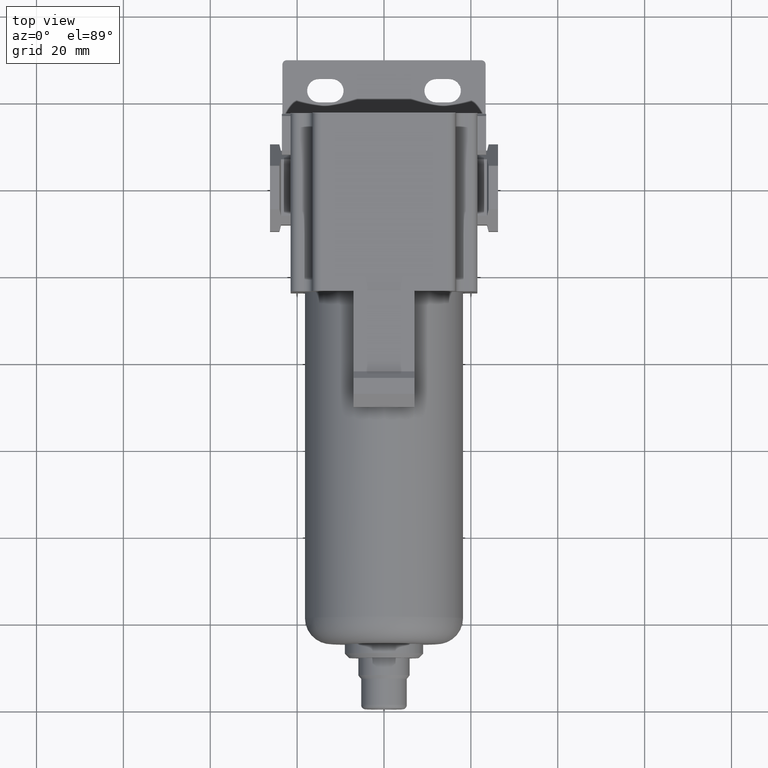
[diagram: clean part render]
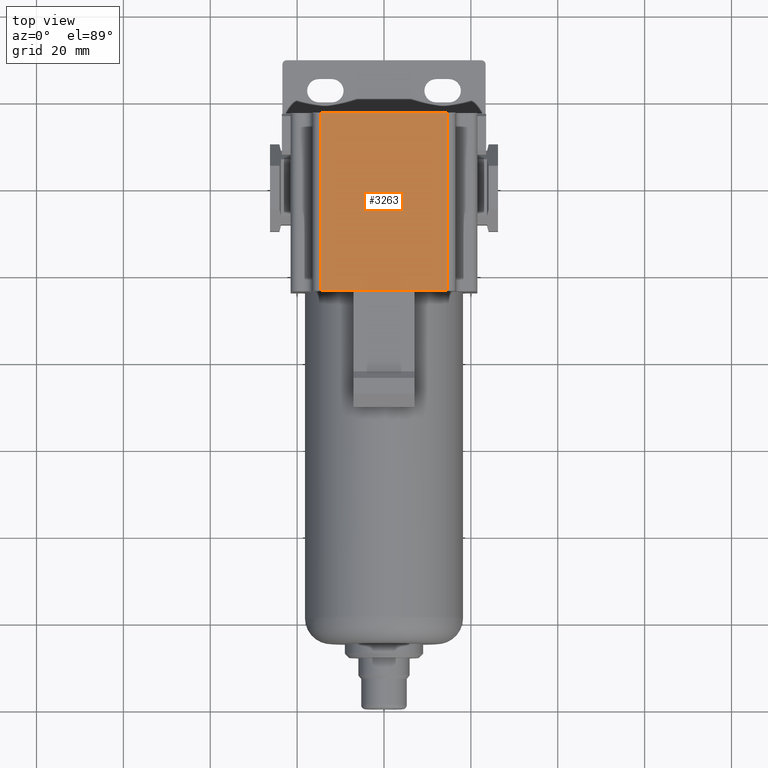
[diagram: same view with one face highlighted and labeled with its STEP entity id]
A machine part, top view. The second image highlights one B-rep face of the part: STEP entity #3263.
In plain terms, the highlighted planar face has unit normal (0, 0, -1).
Its self-contained STEP definition (entity closure, byte-faithful):
#202 = EDGE_CURVE ( 'NONE', #3062, #203, #1052, .T. ) ;
#203 = VERTEX_POINT ( 'NONE', #2962 ) ;
#566 = EDGE_LOOP ( 'NONE', ( #1253, #2168, #4261, #1574, #3923, #2360 ) ) ;
#569 = AXIS2_PLACEMENT_3D ( 'NONE', #3597, #3946, #1600 ) ;
#700 = CARTESIAN_POINT ( 'NONE',  ( -14.50000000000000000, -24.00000000000000000, 21.50000000000000000 ) ) ;
#754 = DIRECTION ( 'NONE',  ( -0.0000000000000000000, -1.000000000000000000, -0.0000000000000000000 ) ) ;
#802 = LINE ( 'NONE', #2758, #4073 ) ;
#1012 = DIRECTION ( 'NONE',  ( 1.000000000000000000, 0.0000000000000000000, 0.0000000000000000000 ) ) ;
#1052 = LINE ( 'NONE', #1640, #3535 ) ;
#1057 = LINE ( 'NONE', #2427, #3343 ) ;
#1086 = LINE ( 'NONE', #2409, #3836 ) ;
#1253 = ORIENTED_EDGE ( 'NONE', *, *, #3000, .T. ) ;
#1255 = CARTESIAN_POINT ( 'NONE',  ( -14.50000000000000000, 17.00000000000000000, 21.50000000000000000 ) ) ;
#1325 = EDGE_CURVE ( 'NONE', #203, #3082, #3250, .T. ) ;
#1410 = DIRECTION ( 'NONE',  ( 1.000000000000000000, 0.0000000000000000000, 0.0000000000000000000 ) ) ;
#1574 = ORIENTED_EDGE ( 'NONE', *, *, #1325, .F. ) ;
#1600 = DIRECTION ( 'NONE',  ( -1.000000000000000000, 0.0000000000000000000, 0.0000000000000000000 ) ) ;
#1640 = CARTESIAN_POINT ( 'NONE',  ( -14.50000000000000000, 17.00000000000000000, 21.50000000000000000 ) ) ;
#1779 = EDGE_CURVE ( 'NONE', #3099, #1945, #802, .T. ) ;
#1945 = VERTEX_POINT ( 'NONE', #4270 ) ;
#1968 = VERTEX_POINT ( 'NONE', #2392 ) ;
#2168 = ORIENTED_EDGE ( 'NONE', *, *, #1779, .F. ) ;
#2265 = DIRECTION ( 'NONE',  ( -0.0000000000000000000, -1.000000000000000000, -0.0000000000000000000 ) ) ;
#2360 = ORIENTED_EDGE ( 'NONE', *, *, #2625, .T. ) ;
#2377 = DIRECTION ( 'NONE',  ( 1.000000000000000000, 0.0000000000000000000, 0.0000000000000000000 ) ) ;
#2392 = CARTESIAN_POINT ( 'NONE',  ( -14.50000000000000000, -24.00000000000000000, 21.50000000000000000 ) ) ;
#2409 = CARTESIAN_POINT ( 'NONE',  ( -14.50000000000000000, 17.00000000000000000, 21.50000000000000000 ) ) ;
#2427 = CARTESIAN_POINT ( 'NONE',  ( -14.50000000000000000, -24.00000000000000000, 21.50000000000000000 ) ) ;
#2568 = CARTESIAN_POINT ( 'NONE',  ( 6.999999999999990230, -24.00000000000000000, 21.50000000000000000 ) ) ;
#2585 = VECTOR ( 'NONE', #1012, 1000.000000000000000 ) ;
#2612 = PLANE ( 'NONE',  #569 ) ;
#2625 = EDGE_CURVE ( 'NONE', #3062, #1968, #1086, .T. ) ;
#2758 = CARTESIAN_POINT ( 'NONE',  ( -14.50000000000000000, -24.00000000000000000, 21.50000000000000000 ) ) ;
#2921 = FACE_OUTER_BOUND ( 'NONE', #566, .T. ) ;
#2962 = CARTESIAN_POINT ( 'NONE',  ( 14.50000000000000000, 17.00000000000000000, 21.50000000000000000 ) ) ;
#3000 = EDGE_CURVE ( 'NONE', #1968, #1945, #1057, .T. ) ;
#3013 = LINE ( 'NONE', #700, #2585 ) ;
#3037 = VECTOR ( 'NONE', #2265, 1000.000000000000000 ) ;
#3062 = VERTEX_POINT ( 'NONE', #1255 ) ;
#3082 = VERTEX_POINT ( 'NONE', #3843 ) ;
#3099 = VERTEX_POINT ( 'NONE', #2568 ) ;
#3133 = DIRECTION ( 'NONE',  ( -1.000000000000000000, 0.0000000000000000000, 0.0000000000000000000 ) ) ;
#3250 = LINE ( 'NONE', #4258, #3037 ) ;
#3263 = ADVANCED_FACE ( 'NONE', ( #2921 ), #2612, .F. ) ;
#3343 = VECTOR ( 'NONE', #1410, 1000.000000000000000 ) ;
#3535 = VECTOR ( 'NONE', #2377, 1000.000000000000000 ) ;
#3597 = CARTESIAN_POINT ( 'NONE',  ( -14.50000000000000000, 17.00000000000000000, 21.50000000000000000 ) ) ;
#3836 = VECTOR ( 'NONE', #754, 1000.000000000000000 ) ;
#3843 = CARTESIAN_POINT ( 'NONE',  ( 14.50000000000000000, -24.00000000000000000, 21.50000000000000000 ) ) ;
#3875 = EDGE_CURVE ( 'NONE', #3099, #3082, #3013, .T. ) ;
#3923 = ORIENTED_EDGE ( 'NONE', *, *, #202, .F. ) ;
#3946 = DIRECTION ( 'NONE',  ( 0.0000000000000000000, 0.0000000000000000000, -1.000000000000000000 ) ) ;
#4073 = VECTOR ( 'NONE', #3133, 1000.000000000000000 ) ;
#4258 = CARTESIAN_POINT ( 'NONE',  ( 14.50000000000000000, 17.00000000000000000, 21.50000000000000000 ) ) ;
#4261 = ORIENTED_EDGE ( 'NONE', *, *, #3875, .T. ) ;
#4270 = CARTESIAN_POINT ( 'NONE',  ( -7.000000000000000000, -24.00000000000000000, 21.50000000000000000 ) ) ;